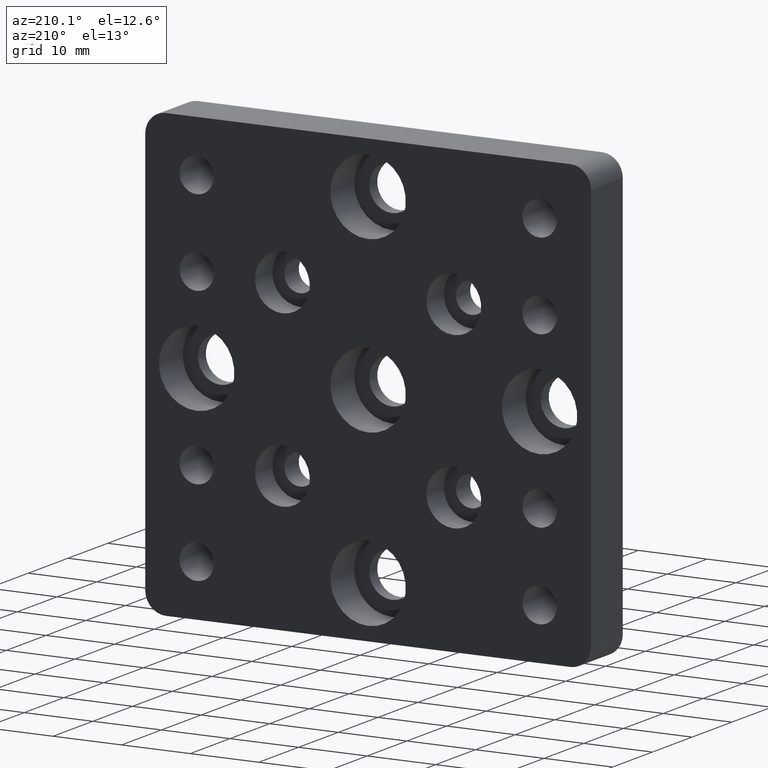
[diagram: clean part render]
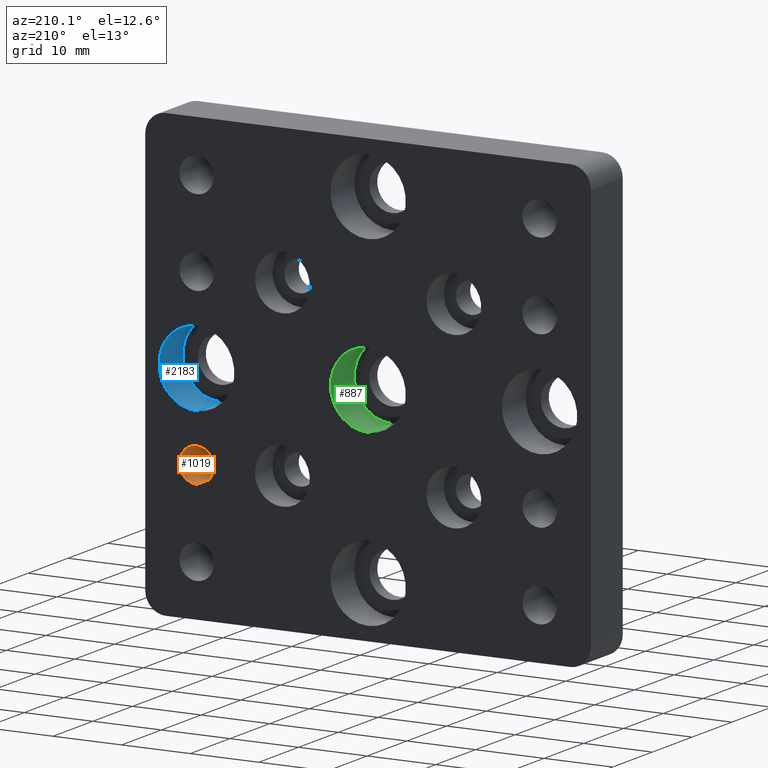
[diagram: same view with three faces highlighted in distinct colors, each labeled with its STEP entity id]
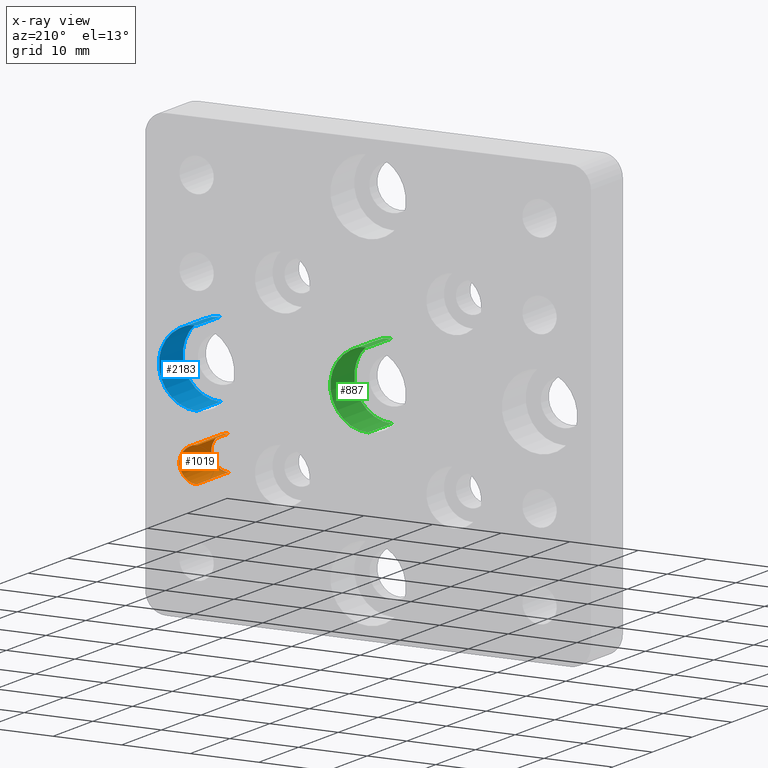
[diagram: x-ray of the same camera — body ghosted, the three highlighted faces saturated]
A machine part, auxiliary view with three faces highlighted in distinct colors.
The next image is the same camera in x-ray (body ghosted, the three faces saturated) — at least one of them is partly hidden behind the body in this view.
Their STEP definitions:

[orange] entity #1019 — the highlighted cylindrical surface (edge-blend (fillet) strip) has radius 2.5 mm, axis along (-0, 1, -0).
#82 = LINE ( 'NONE', #1600, #494 ) ;
#148 = DIRECTION ( 'NONE',  ( -0.0000000000000000000, 1.000000000000000000, -0.0000000000000000000 ) ) ;
#149 = VECTOR ( 'NONE', #148, 1000.000000000000000 ) ;
#161 = DIRECTION ( 'NONE',  ( -0.0000000000000000000, 1.000000000000000000, -0.0000000000000000000 ) ) ;
#175 = DIRECTION ( 'NONE',  ( 0.0000000000000000000, 0.0000000000000000000, 1.000000000000000000 ) ) ;
#220 = CARTESIAN_POINT ( 'NONE',  ( 25.00000000000000400, 0.0000000000000000000, -10.00000000000000000 ) ) ;
#348 = DIRECTION ( 'NONE',  ( -0.0000000000000000000, 1.000000000000000000, -0.0000000000000000000 ) ) ;
#429 = ORIENTED_EDGE ( 'NONE', *, *, #2054, .T. ) ;
#436 = DIRECTION ( 'NONE',  ( -0.0000000000000000000, 1.000000000000000000, -0.0000000000000000000 ) ) ;
#461 = ORIENTED_EDGE ( 'NONE', *, *, #1026, .T. ) ;
#466 = EDGE_CURVE ( 'NONE', #1479, #904, #82, .T. ) ;
#494 = VECTOR ( 'NONE', #161, 1000.000000000000000 ) ;
#498 = CARTESIAN_POINT ( 'NONE',  ( 25.00000000000000400, 0.0000000000000000000, -14.99999999999999800 ) ) ;
#588 = VERTEX_POINT ( 'NONE', #918 ) ;
#649 = CARTESIAN_POINT ( 'NONE',  ( 25.00000000000000400, 8.000000000000001800, -14.99999999999998800 ) ) ;
#769 = CIRCLE ( 'NONE', #1781, 2.499999999999998700 ) ;
#831 = CIRCLE ( 'NONE', #1323, 2.499999999999988500 ) ;
#898 = DIRECTION ( 'NONE',  ( 0.0000000000000000000, 0.0000000000000000000, 1.000000000000000000 ) ) ;
#904 = VERTEX_POINT ( 'NONE', #649 ) ;
#918 = CARTESIAN_POINT ( 'NONE',  ( 25.00000000000000400, 8.000000000000001800, -10.00000000000001100 ) ) ;
#993 = EDGE_LOOP ( 'NONE', ( #1392, #1066, #429, #461 ) ) ;
#1019 = ADVANCED_FACE ( 'NONE', ( #1461 ), #1824, .F. ) ;
#1026 = EDGE_CURVE ( 'NONE', #588, #904, #831, .T. ) ;
#1066 = ORIENTED_EDGE ( 'NONE', *, *, #1658, .F. ) ;
#1157 = DIRECTION ( 'NONE',  ( 0.0000000000000000000, 0.0000000000000000000, 1.000000000000000000 ) ) ;
#1257 = DIRECTION ( 'NONE',  ( -0.0000000000000000000, 1.000000000000000000, -0.0000000000000000000 ) ) ;
#1323 = AXIS2_PLACEMENT_3D ( 'NONE', #1770, #1257, #898 ) ;
#1392 = ORIENTED_EDGE ( 'NONE', *, *, #466, .F. ) ;
#1411 = AXIS2_PLACEMENT_3D ( 'NONE', #1604, #348, #175 ) ;
#1461 = FACE_OUTER_BOUND ( 'NONE', #993, .T. ) ;
#1479 = VERTEX_POINT ( 'NONE', #498 ) ;
#1598 = LINE ( 'NONE', #2130, #149 ) ;
#1600 = CARTESIAN_POINT ( 'NONE',  ( 25.00000000000000400, 8.000000000000000000, -14.99999999999999300 ) ) ;
#1604 = CARTESIAN_POINT ( 'NONE',  ( 25.00000000000000400, 8.000000000000000000, -12.49999999999999800 ) ) ;
#1658 = EDGE_CURVE ( 'NONE', #2337, #1479, #769, .T. ) ;
#1770 = CARTESIAN_POINT ( 'NONE',  ( 25.00000000000000400, 8.000000000000001800, -12.49999999999999800 ) ) ;
#1781 = AXIS2_PLACEMENT_3D ( 'NONE', #2035, #436, #1157 ) ;
#1824 = CYLINDRICAL_SURFACE ( 'NONE', #1411, 2.499999999999993300 ) ;
#2035 = CARTESIAN_POINT ( 'NONE',  ( 25.00000000000000400, 0.0000000000000000000, -12.49999999999999800 ) ) ;
#2054 = EDGE_CURVE ( 'NONE', #2337, #588, #1598, .T. ) ;
#2130 = CARTESIAN_POINT ( 'NONE',  ( 25.00000000000000400, 8.000000000000000000, -10.00000000000000500 ) ) ;
#2337 = VERTEX_POINT ( 'NONE', #220 ) ;

[blue] entity #2183 — the highlighted cylindrical surface (partial cylindrical patch) has radius 5.5 mm, axis along (-0, 1, -0).
#13 = EDGE_CURVE ( 'NONE', #2043, #1247, #105, .T. ) ;
#47 = VECTOR ( 'NONE', #1355, 1000.000000000000000 ) ;
#105 = CIRCLE ( 'NONE', #1630, 5.499999999999994700 ) ;
#261 = CARTESIAN_POINT ( 'NONE',  ( 25.00000000000000000, 2.000000000000001800, -5.499999999999994700 ) ) ;
#344 = DIRECTION ( 'NONE',  ( 0.0000000000000000000, 0.0000000000000000000, 1.000000000000000000 ) ) ;
#359 = CARTESIAN_POINT ( 'NONE',  ( 25.00000000000000000, 8.000000000000000000, 0.0000000000000000000 ) ) ;
#376 = DIRECTION ( 'NONE',  ( -0.0000000000000000000, 1.000000000000000000, -0.0000000000000000000 ) ) ;
#380 = VERTEX_POINT ( 'NONE', #1236 ) ;
#447 = ORIENTED_EDGE ( 'NONE', *, *, #1577, .T. ) ;
#576 = AXIS2_PLACEMENT_3D ( 'NONE', #1056, #886, #903 ) ;
#777 = CARTESIAN_POINT ( 'NONE',  ( 25.00000000000000000, 2.000000000000001800, 5.499999999999994700 ) ) ;
#791 = EDGE_LOOP ( 'NONE', ( #1442, #1648, #447, #1358 ) ) ;
#886 = DIRECTION ( 'NONE',  ( -0.0000000000000000000, 1.000000000000000000, -0.0000000000000000000 ) ) ;
#903 = DIRECTION ( 'NONE',  ( 0.0000000000000000000, 0.0000000000000000000, 1.000000000000000000 ) ) ;
#906 = CARTESIAN_POINT ( 'NONE',  ( 25.00000000000000000, 8.000000000000000000, 5.499999999999994700 ) ) ;
#935 = DIRECTION ( 'NONE',  ( -0.0000000000000000000, 1.000000000000000000, -0.0000000000000000000 ) ) ;
#984 = VERTEX_POINT ( 'NONE', #1250 ) ;
#1001 = VECTOR ( 'NONE', #935, 1000.000000000000000 ) ;
#1056 = CARTESIAN_POINT ( 'NONE',  ( 25.00000000000000000, 8.000000000000000000, 0.0000000000000000000 ) ) ;
#1144 = LINE ( 'NONE', #1347, #47 ) ;
#1236 = CARTESIAN_POINT ( 'NONE',  ( 25.00000000000000000, 8.000000000000000000, 5.499999999999994700 ) ) ;
#1239 = CARTESIAN_POINT ( 'NONE',  ( 25.00000000000000000, 2.000000000000001800, 0.0000000000000000000 ) ) ;
#1247 = VERTEX_POINT ( 'NONE', #261 ) ;
#1250 = CARTESIAN_POINT ( 'NONE',  ( 25.00000000000000000, 8.000000000000000000, -5.499999999999994700 ) ) ;
#1255 = CIRCLE ( 'NONE', #1730, 5.499999999999994700 ) ;
#1347 = CARTESIAN_POINT ( 'NONE',  ( 25.00000000000000000, 8.000000000000000000, -5.499999999999994700 ) ) ;
#1352 = EDGE_CURVE ( 'NONE', #1247, #984, #1144, .T. ) ;
#1355 = DIRECTION ( 'NONE',  ( -0.0000000000000000000, 1.000000000000000000, -0.0000000000000000000 ) ) ;
#1358 = ORIENTED_EDGE ( 'NONE', *, *, #1406, .T. ) ;
#1406 = EDGE_CURVE ( 'NONE', #380, #984, #1255, .T. ) ;
#1413 = DIRECTION ( 'NONE',  ( -0.0000000000000000000, 1.000000000000000000, -0.0000000000000000000 ) ) ;
#1442 = ORIENTED_EDGE ( 'NONE', *, *, #1352, .F. ) ;
#1569 = FACE_OUTER_BOUND ( 'NONE', #791, .T. ) ;
#1577 = EDGE_CURVE ( 'NONE', #2043, #380, #1791, .T. ) ;
#1630 = AXIS2_PLACEMENT_3D ( 'NONE', #1239, #376, #344 ) ;
#1648 = ORIENTED_EDGE ( 'NONE', *, *, #13, .F. ) ;
#1730 = AXIS2_PLACEMENT_3D ( 'NONE', #359, #1413, #2163 ) ;
#1791 = LINE ( 'NONE', #906, #1001 ) ;
#1856 = CYLINDRICAL_SURFACE ( 'NONE', #576, 5.499999999999994700 ) ;
#2043 = VERTEX_POINT ( 'NONE', #777 ) ;
#2163 = DIRECTION ( 'NONE',  ( 0.0000000000000000000, 0.0000000000000000000, 1.000000000000000000 ) ) ;
#2183 = ADVANCED_FACE ( 'NONE', ( #1569 ), #1856, .F. ) ;

[green] entity #887 — the highlighted cylindrical surface (partial cylindrical patch) has radius 5.5 mm, axis along (-0, 1, -0).
#21 = DIRECTION ( 'NONE',  ( -0.0000000000000000000, 1.000000000000000000, -0.0000000000000000000 ) ) ;
#55 = DIRECTION ( 'NONE',  ( -0.0000000000000000000, 1.000000000000000000, -0.0000000000000000000 ) ) ;
#92 = EDGE_LOOP ( 'NONE', ( #162, #172, #2039, #635 ) ) ;
#155 = CARTESIAN_POINT ( 'NONE',  ( 0.0000000000000000000, 8.000000000000000000, 5.499999999999994700 ) ) ;
#162 = ORIENTED_EDGE ( 'NONE', *, *, #1938, .F. ) ;
#172 = ORIENTED_EDGE ( 'NONE', *, *, #2110, .F. ) ;
#309 = DIRECTION ( 'NONE',  ( -0.0000000000000000000, 1.000000000000000000, -0.0000000000000000000 ) ) ;
#363 = CARTESIAN_POINT ( 'NONE',  ( 0.0000000000000000000, 2.000000000000001800, 0.0000000000000000000 ) ) ;
#414 = EDGE_CURVE ( 'NONE', #1900, #1310, #1497, .T. ) ;
#420 = CARTESIAN_POINT ( 'NONE',  ( 0.0000000000000000000, 8.000000000000000000, 0.0000000000000000000 ) ) ;
#481 = DIRECTION ( 'NONE',  ( 0.0000000000000000000, 0.0000000000000000000, 1.000000000000000000 ) ) ;
#493 = CYLINDRICAL_SURFACE ( 'NONE', #754, 5.499999999999994700 ) ;
#635 = ORIENTED_EDGE ( 'NONE', *, *, #1253, .T. ) ;
#697 = DIRECTION ( 'NONE',  ( -0.0000000000000000000, 1.000000000000000000, -0.0000000000000000000 ) ) ;
#754 = AXIS2_PLACEMENT_3D ( 'NONE', #1581, #309, #481 ) ;
#887 = ADVANCED_FACE ( 'NONE', ( #1970 ), #493, .F. ) ;
#1040 = CARTESIAN_POINT ( 'NONE',  ( 0.0000000000000000000, 2.000000000000001800, 5.499999999999994700 ) ) ;
#1052 = LINE ( 'NONE', #1840, #1453 ) ;
#1074 = AXIS2_PLACEMENT_3D ( 'NONE', #420, #55, #1155 ) ;
#1076 = VERTEX_POINT ( 'NONE', #1810 ) ;
#1082 = CIRCLE ( 'NONE', #1074, 5.499999999999994700 ) ;
#1155 = DIRECTION ( 'NONE',  ( 0.0000000000000000000, 0.0000000000000000000, 1.000000000000000000 ) ) ;
#1253 = EDGE_CURVE ( 'NONE', #1310, #1076, #1082, .T. ) ;
#1308 = VERTEX_POINT ( 'NONE', #1325 ) ;
#1310 = VERTEX_POINT ( 'NONE', #1848 ) ;
#1315 = CIRCLE ( 'NONE', #1909, 5.499999999999994700 ) ;
#1325 = CARTESIAN_POINT ( 'NONE',  ( 6.735557395310435100E-016, 2.000000000000001800, -5.499999999999994700 ) ) ;
#1453 = VECTOR ( 'NONE', #21, 1000.000000000000000 ) ;
#1497 = LINE ( 'NONE', #155, #1916 ) ;
#1581 = CARTESIAN_POINT ( 'NONE',  ( 0.0000000000000000000, 8.000000000000000000, 0.0000000000000000000 ) ) ;
#1810 = CARTESIAN_POINT ( 'NONE',  ( 6.735557395310435100E-016, 8.000000000000000000, -5.499999999999994700 ) ) ;
#1840 = CARTESIAN_POINT ( 'NONE',  ( 6.735557395310435100E-016, 8.000000000000000000, -5.499999999999994700 ) ) ;
#1848 = CARTESIAN_POINT ( 'NONE',  ( 0.0000000000000000000, 8.000000000000000000, 5.499999999999994700 ) ) ;
#1900 = VERTEX_POINT ( 'NONE', #1040 ) ;
#1909 = AXIS2_PLACEMENT_3D ( 'NONE', #363, #2181, #1980 ) ;
#1916 = VECTOR ( 'NONE', #697, 1000.000000000000000 ) ;
#1938 = EDGE_CURVE ( 'NONE', #1308, #1076, #1052, .T. ) ;
#1970 = FACE_OUTER_BOUND ( 'NONE', #92, .T. ) ;
#1980 = DIRECTION ( 'NONE',  ( 0.0000000000000000000, 0.0000000000000000000, 1.000000000000000000 ) ) ;
#2039 = ORIENTED_EDGE ( 'NONE', *, *, #414, .T. ) ;
#2110 = EDGE_CURVE ( 'NONE', #1900, #1308, #1315, .T. ) ;
#2181 = DIRECTION ( 'NONE',  ( -0.0000000000000000000, 1.000000000000000000, -0.0000000000000000000 ) ) ;